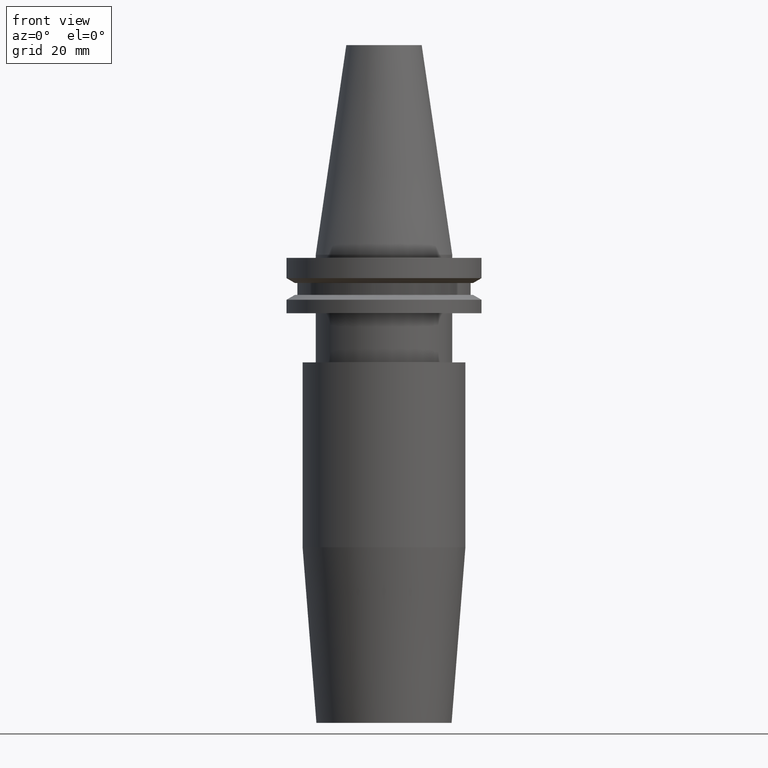
[diagram: clean part render]
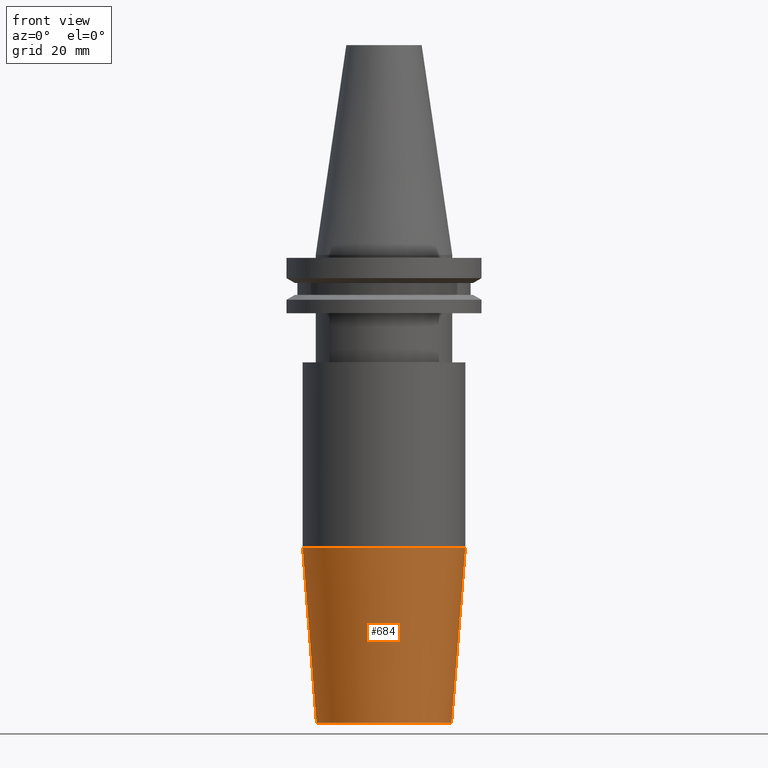
[diagram: same view with one face highlighted and labeled with its STEP entity id]
A machine part, front view. The second image highlights one B-rep face of the part: STEP entity #684.
In plain terms, the highlighted conical surface has half-angle 4.5 deg.
Its self-contained STEP definition (entity closure, byte-faithful):
#3 = EDGE_CURVE ( 'NONE', #46, #327, #703, .T. ) ;
#46 = VERTEX_POINT ( 'NONE', #171 ) ;
#56 = CARTESIAN_POINT ( 'NONE',  ( 0.000000000000000000, 0.000000000000000000, -152.4000000000000057 ) ) ;
#76 = CARTESIAN_POINT ( 'NONE',  ( 0.000000000000000000, 0.000000000000000000, -152.4000000000000057 ) ) ;
#135 = ORIENTED_EDGE ( 'NONE', *, *, #3, .F. ) ;
#171 = CARTESIAN_POINT ( 'NONE',  ( -22.00000000000000000, 2.969768487932331287E-15, -152.4000000000000057 ) ) ;
#180 = CIRCLE ( 'NONE', #701, 22.00000000000000000 ) ;
#226 = ORIENTED_EDGE ( 'NONE', *, *, #833, .F. ) ;
#258 = DIRECTION ( 'NONE',  ( 0.07845909572783671404, 0.000000000000000000, 0.9969173337331286300 ) ) ;
#260 = DIRECTION ( 'NONE',  ( 1.000000000000000000, 0.000000000000000000, 0.000000000000000000 ) ) ;
#279 = CARTESIAN_POINT ( 'NONE',  ( 0.000000000000000000, 0.000000000000000000, -95.22207868720779800 ) ) ;
#284 = EDGE_CURVE ( 'NONE', #825, #623, #710, .T. ) ;
#306 = CARTESIAN_POINT ( 'NONE',  ( -22.00000000000000000, 2.694222958124176809E-15, -152.4000000000000057 ) ) ;
#319 = EDGE_CURVE ( 'NONE', #46, #825, #180, .T. ) ;
#327 = VERTEX_POINT ( 'NONE', #680 ) ;
#339 = DIRECTION ( 'NONE',  ( 1.000000000000000000, 0.000000000000000000, 0.000000000000000000 ) ) ;
#348 = CONICAL_SURFACE ( 'NONE', #732, 22.00000000000000000, 0.07853981633973657062 ) ;
#415 = DIRECTION ( 'NONE',  ( -0.000000000000000000, -0.000000000000000000, 1.000000000000000000 ) ) ;
#435 = ORIENTED_EDGE ( 'NONE', *, *, #284, .T. ) ;
#446 = EDGE_LOOP ( 'NONE', ( #135, #705, #435, #226 ) ) ;
#447 = CIRCLE ( 'NONE', #553, 26.50000000000000000 ) ;
#459 = FACE_OUTER_BOUND ( 'NONE', #446, .T. ) ;
#524 = DIRECTION ( 'NONE',  ( -0.000000000000000000, -0.000000000000000000, 1.000000000000000000 ) ) ;
#541 = DIRECTION ( 'NONE',  ( 1.000000000000000000, 0.000000000000000000, 0.000000000000000000 ) ) ;
#553 = AXIS2_PLACEMENT_3D ( 'NONE', #279, #675, #339 ) ;
#623 = VERTEX_POINT ( 'NONE', #657 ) ;
#657 = CARTESIAN_POINT ( 'NONE',  ( 26.50000000000000000, 0.000000000000000000, -95.22207868720779800 ) ) ;
#675 = DIRECTION ( 'NONE',  ( -0.000000000000000000, -0.000000000000000000, 1.000000000000000000 ) ) ;
#680 = CARTESIAN_POINT ( 'NONE',  ( -26.50000000000000000, 3.245314017740485765E-15, -95.22207868720779800 ) ) ;
#684 = ADVANCED_FACE ( 'NONE', ( #459 ), #348, .T. ) ;
#701 = AXIS2_PLACEMENT_3D ( 'NONE', #76, #415, #541 ) ;
#703 = LINE ( 'NONE', #306, #769 ) ;
#705 = ORIENTED_EDGE ( 'NONE', *, *, #319, .T. ) ;
#710 = LINE ( 'NONE', #841, #847 ) ;
#732 = AXIS2_PLACEMENT_3D ( 'NONE', #56, #524, #260 ) ;
#769 = VECTOR ( 'NONE', #821, 1000.000000000000000 ) ;
#810 = CARTESIAN_POINT ( 'NONE',  ( 22.00000000000000000, 0.000000000000000000, -152.4000000000000057 ) ) ;
#821 = DIRECTION ( 'NONE',  ( -0.07845909572783671404, 9.608468044709101226E-18, 0.9969173337331286300 ) ) ;
#825 = VERTEX_POINT ( 'NONE', #810 ) ;
#833 = EDGE_CURVE ( 'NONE', #327, #623, #447, .T. ) ;
#841 = CARTESIAN_POINT ( 'NONE',  ( 22.00000000000000000, 0.000000000000000000, -152.4000000000000057 ) ) ;
#847 = VECTOR ( 'NONE', #258, 1000.000000000000000 ) ;